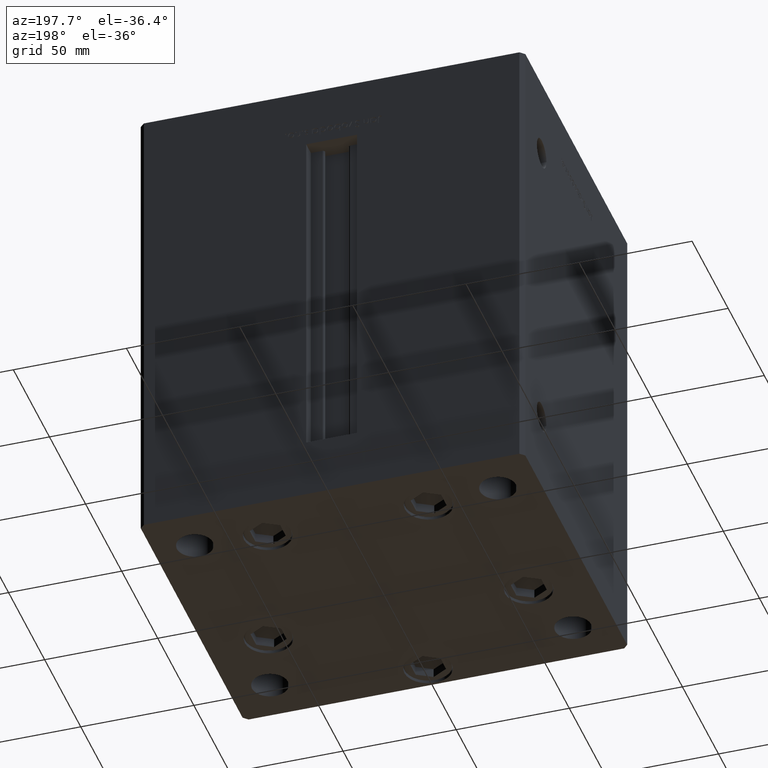
[diagram: clean part render]
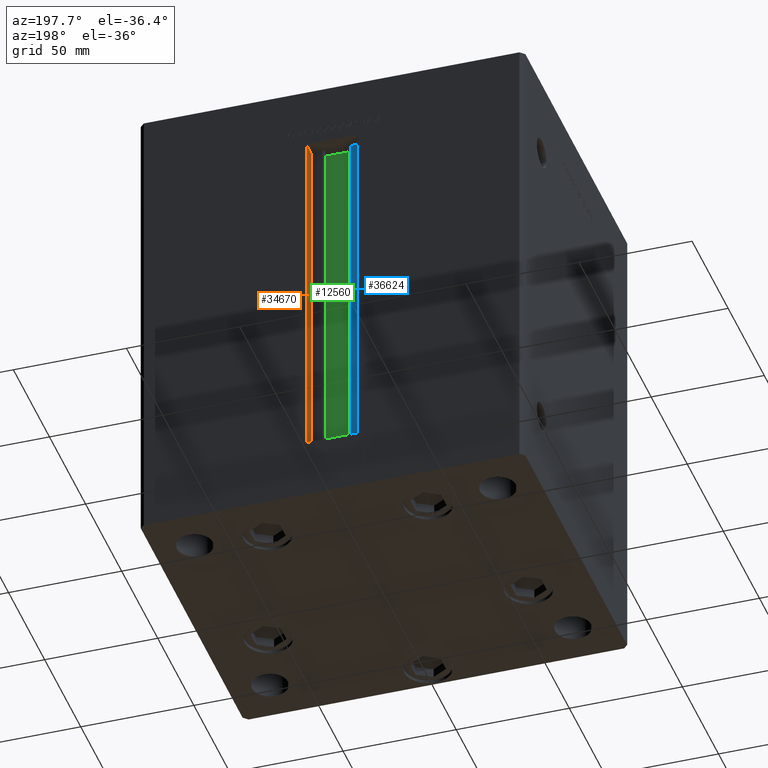
[diagram: same view with three faces highlighted in distinct colors, each labeled with its STEP entity id]
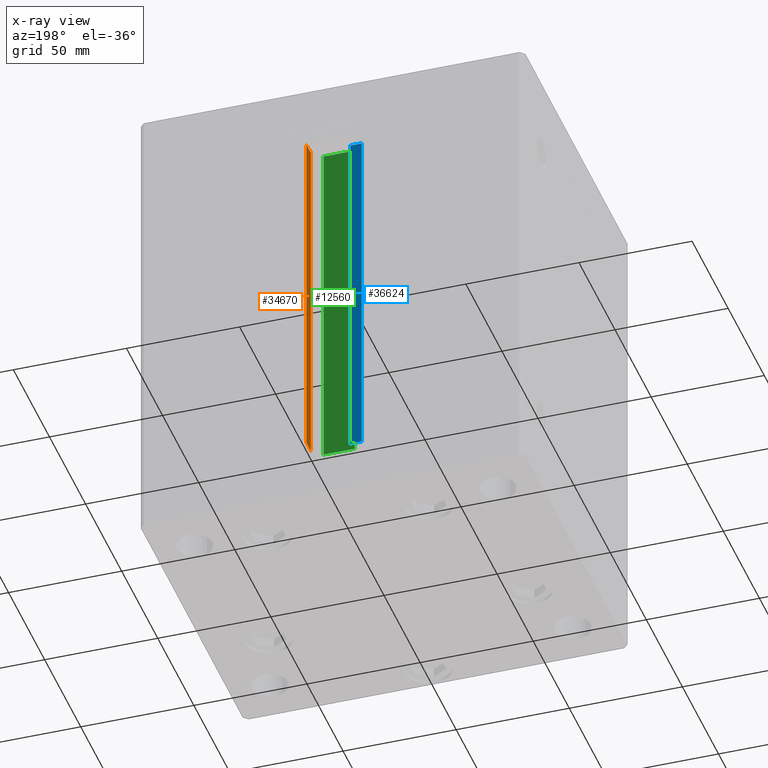
[diagram: x-ray of the same camera — body ghosted, the three highlighted faces saturated]
A machine part, auxiliary view with three faces highlighted in distinct colors.
The next image is the same camera in x-ray (body ghosted, the three faces saturated) — at least one of them is partly hidden behind the body in this view.
Their STEP definitions:

[orange] entity #34670 — the highlighted planar face has unit normal (1, 0, 0).
#409 = DIRECTION ( 'NONE',  ( 1.000000000000000000, -0.000000000000000000, 0.000000000000000000 ) ) ;
#3016 = LINE ( 'NONE', #7241, #25008 ) ;
#4824 = CARTESIAN_POINT ( 'NONE',  ( 11.25000000000000178, 65.99999999999997158, 156.0000000000000000 ) ) ;
#5044 = EDGE_CURVE ( 'NONE', #17215, #20206, #10112, .T. ) ;
#7241 = CARTESIAN_POINT ( 'NONE',  ( 11.25000000000000178, 65.99999999999997158, 0.000000000000000000 ) ) ;
#7609 = VECTOR ( 'NONE', #24935, 1000.000000000000000 ) ;
#7883 = VERTEX_POINT ( 'NONE', #48641 ) ;
#8319 = FACE_OUTER_BOUND ( 'NONE', #38593, .T. ) ;
#8476 = VECTOR ( 'NONE', #50532, 1000.000000000000000 ) ;
#8853 = CARTESIAN_POINT ( 'NONE',  ( 11.25000000000000178, 65.99999999999997158, 0.000000000000000000 ) ) ;
#10112 = LINE ( 'NONE', #42262, #23487 ) ;
#12174 = ORIENTED_EDGE ( 'NONE', *, *, #5044, .F. ) ;
#12532 = DIRECTION ( 'NONE',  ( 0.000000000000000000, 0.000000000000000000, -1.000000000000000000 ) ) ;
#13887 = LINE ( 'NONE', #17333, #8476 ) ;
#15965 = PLANE ( 'NONE',  #21809 ) ;
#17215 = VERTEX_POINT ( 'NONE', #39306 ) ;
#17333 = CARTESIAN_POINT ( 'NONE',  ( 11.25000000000000178, 72.49999999999998579, 0.000000000000000000 ) ) ;
#19084 = DIRECTION ( 'NONE',  ( -0.000000000000000000, -0.000000000000000000, 1.000000000000000000 ) ) ;
#20206 = VERTEX_POINT ( 'NONE', #4824 ) ;
#21809 = AXIS2_PLACEMENT_3D ( 'NONE', #24130, #409, #12532 ) ;
#22991 = DIRECTION ( 'NONE',  ( -0.000000000000000000, -1.000000000000000000, 0.000000000000000000 ) ) ;
#23487 = VECTOR ( 'NONE', #22991, 1000.000000000000000 ) ;
#24130 = CARTESIAN_POINT ( 'NONE',  ( 11.25000000000000178, 65.99999999999997158, 0.000000000000000000 ) ) ;
#24433 = EDGE_CURVE ( 'NONE', #7883, #20206, #3016, .T. ) ;
#24935 = DIRECTION ( 'NONE',  ( 0.000000000000000000, 1.000000000000000000, 0.000000000000000000 ) ) ;
#25008 = VECTOR ( 'NONE', #19084, 1000.000000000000000 ) ;
#28742 = VERTEX_POINT ( 'NONE', #41304 ) ;
#34670 = ADVANCED_FACE ( 'NONE', ( #8319 ), #15965, .F. ) ;
#37957 = EDGE_CURVE ( 'NONE', #7883, #28742, #41000, .T. ) ;
#38593 = EDGE_LOOP ( 'NONE', ( #40983, #43092, #52054, #12174 ) ) ;
#39306 = CARTESIAN_POINT ( 'NONE',  ( 11.24999999999999467, 72.49999999999998579, 156.0000000000000000 ) ) ;
#39545 = EDGE_CURVE ( 'NONE', #28742, #17215, #13887, .T. ) ;
#40983 = ORIENTED_EDGE ( 'NONE', *, *, #39545, .F. ) ;
#41000 = LINE ( 'NONE', #8853, #7609 ) ;
#41304 = CARTESIAN_POINT ( 'NONE',  ( 11.25000000000000178, 72.49999999999998579, 0.000000000000000000 ) ) ;
#42262 = CARTESIAN_POINT ( 'NONE',  ( 11.25000000000000178, 0.000000000000000000, 156.0000000000000000 ) ) ;
#43092 = ORIENTED_EDGE ( 'NONE', *, *, #37957, .F. ) ;
#48641 = CARTESIAN_POINT ( 'NONE',  ( 11.25000000000000178, 65.99999999999997158, 0.000000000000000000 ) ) ;
#50532 = DIRECTION ( 'NONE',  ( -0.000000000000000000, -0.000000000000000000, 1.000000000000000000 ) ) ;
#52054 = ORIENTED_EDGE ( 'NONE', *, *, #24433, .T. ) ;

[blue] entity #36624 — the highlighted planar face has unit normal (0, -1, 0).
#3811 = DIRECTION ( 'NONE',  ( 1.000000000000000000, 2.739037067332160936E-15, -0.000000000000000000 ) ) ;
#4966 = VERTEX_POINT ( 'NONE', #9082 ) ;
#5543 = DIRECTION ( 'NONE',  ( 2.739037067332161330E-15, -1.000000000000000000, 0.000000000000000000 ) ) ;
#7715 = ORIENTED_EDGE ( 'NONE', *, *, #11736, .T. ) ;
#7755 = LINE ( 'NONE', #32249, #41980 ) ;
#7767 = LINE ( 'NONE', #39912, #13942 ) ;
#9082 = CARTESIAN_POINT ( 'NONE',  ( -6.183333333334001480, 65.99999999999998579, 0.000000000000000000 ) ) ;
#10204 = LINE ( 'NONE', #45795, #31070 ) ;
#11736 = EDGE_CURVE ( 'NONE', #39741, #17714, #31391, .T. ) ;
#12395 = CARTESIAN_POINT ( 'NONE',  ( -6.183333333334001480, 65.99999999999998579, 0.000000000000000000 ) ) ;
#13889 = DIRECTION ( 'NONE',  ( -0.000000000000000000, -0.000000000000000000, 1.000000000000000000 ) ) ;
#13942 = VECTOR ( 'NONE', #3811, 1000.000000000000000 ) ;
#14951 = EDGE_CURVE ( 'NONE', #39741, #4966, #7767, .T. ) ;
#15978 = EDGE_LOOP ( 'NONE', ( #23958, #43099, #7715, #29642 ) ) ;
#17714 = VERTEX_POINT ( 'NONE', #29224 ) ;
#19606 = DIRECTION ( 'NONE',  ( -1.000000000000000000, -2.739037067332161330E-15, 0.000000000000000000 ) ) ;
#20172 = AXIS2_PLACEMENT_3D ( 'NONE', #12395, #5543, #25568 ) ;
#23958 = ORIENTED_EDGE ( 'NONE', *, *, #31220, .F. ) ;
#25568 = DIRECTION ( 'NONE',  ( 1.000000000000000000, 2.739037067332161330E-15, 0.000000000000000000 ) ) ;
#27039 = CARTESIAN_POINT ( 'NONE',  ( -6.183333333334002369, 65.99999999999998579, 156.0000000000000000 ) ) ;
#28843 = EDGE_CURVE ( 'NONE', #46241, #17714, #7755, .T. ) ;
#29002 = FACE_OUTER_BOUND ( 'NONE', #15978, .T. ) ;
#29224 = CARTESIAN_POINT ( 'NONE',  ( -11.25000000000000178, 65.99999999999997158, 156.0000000000000000 ) ) ;
#29642 = ORIENTED_EDGE ( 'NONE', *, *, #28843, .F. ) ;
#31070 = VECTOR ( 'NONE', #13889, 1000.000000000000000 ) ;
#31220 = EDGE_CURVE ( 'NONE', #4966, #46241, #10204, .T. ) ;
#31391 = LINE ( 'NONE', #35877, #38684 ) ;
#32249 = CARTESIAN_POINT ( 'NONE',  ( -1.807764464439226360E-13, 66.00000000000000000, 156.0000000000000000 ) ) ;
#35877 = CARTESIAN_POINT ( 'NONE',  ( -11.25000000000000178, 65.99999999999997158, 0.000000000000000000 ) ) ;
#36624 = ADVANCED_FACE ( 'NONE', ( #29002 ), #45610, .F. ) ;
#38684 = VECTOR ( 'NONE', #48026, 1000.000000000000000 ) ;
#39741 = VERTEX_POINT ( 'NONE', #40472 ) ;
#39912 = CARTESIAN_POINT ( 'NONE',  ( -6.183333333334001480, 65.99999999999998579, 0.000000000000000000 ) ) ;
#40472 = CARTESIAN_POINT ( 'NONE',  ( -11.25000000000000178, 65.99999999999997158, 0.000000000000000000 ) ) ;
#41980 = VECTOR ( 'NONE', #19606, 1000.000000000000000 ) ;
#43099 = ORIENTED_EDGE ( 'NONE', *, *, #14951, .F. ) ;
#45610 = PLANE ( 'NONE',  #20172 ) ;
#45795 = CARTESIAN_POINT ( 'NONE',  ( -6.183333333334001480, 65.99999999999998579, 0.000000000000000000 ) ) ;
#46241 = VERTEX_POINT ( 'NONE', #27039 ) ;
#48026 = DIRECTION ( 'NONE',  ( -0.000000000000000000, -0.000000000000000000, 1.000000000000000000 ) ) ;

[green] entity #12560 — the highlighted planar face has unit normal (0, -1, 0).
#551 = DIRECTION ( 'NONE',  ( -0.000000000000000000, -0.000000000000000000, 1.000000000000000000 ) ) ;
#1533 = VERTEX_POINT ( 'NONE', #32106 ) ;
#3627 = VERTEX_POINT ( 'NONE', #22356 ) ;
#4181 = LINE ( 'NONE', #27368, #29430 ) ;
#6984 = DIRECTION ( 'NONE',  ( 0.000000000000000000, -1.000000000000000000, -0.000000000000000000 ) ) ;
#7238 = CARTESIAN_POINT ( 'NONE',  ( 6.876153656360466826, 61.99999999999985079, 0.000000000000000000 ) ) ;
#7507 = DIRECTION ( 'NONE',  ( 0.000000000000000000, 0.000000000000000000, -1.000000000000000000 ) ) ;
#7771 = CARTESIAN_POINT ( 'NONE',  ( 0.000000000000000000, 61.99999999999985079, 156.0000000000000000 ) ) ;
#8230 = ORIENTED_EDGE ( 'NONE', *, *, #10140, .F. ) ;
#9180 = LINE ( 'NONE', #45798, #32238 ) ;
#10140 = EDGE_CURVE ( 'NONE', #38435, #1533, #36646, .T. ) ;
#11325 = EDGE_LOOP ( 'NONE', ( #8230, #21942, #12585, #45034 ) ) ;
#12560 = ADVANCED_FACE ( 'NONE', ( #14878 ), #43093, .F. ) ;
#12585 = ORIENTED_EDGE ( 'NONE', *, *, #46066, .T. ) ;
#14878 = FACE_OUTER_BOUND ( 'NONE', #11325, .T. ) ;
#16787 = AXIS2_PLACEMENT_3D ( 'NONE', #7238, #6984, #7507 ) ;
#17337 = DIRECTION ( 'NONE',  ( -0.000000000000000000, -0.000000000000000000, 1.000000000000000000 ) ) ;
#21942 = ORIENTED_EDGE ( 'NONE', *, *, #36238, .F. ) ;
#22356 = CARTESIAN_POINT ( 'NONE',  ( -6.876153656360466826, 61.99999999999985079, 156.0000000000000000 ) ) ;
#24436 = EDGE_CURVE ( 'NONE', #1533, #3627, #48106, .T. ) ;
#27368 = CARTESIAN_POINT ( 'NONE',  ( 6.876153656360466826, 61.99999999999985079, 0.000000000000000000 ) ) ;
#29430 = VECTOR ( 'NONE', #31582, 1000.000000000000000 ) ;
#31582 = DIRECTION ( 'NONE',  ( 1.000000000000000000, -0.000000000000000000, -0.000000000000000000 ) ) ;
#32106 = CARTESIAN_POINT ( 'NONE',  ( 6.876153656360466826, 61.99999999999985079, 156.0000000000000000 ) ) ;
#32238 = VECTOR ( 'NONE', #17337, 1000.000000000000000 ) ;
#36238 = EDGE_CURVE ( 'NONE', #37279, #38435, #4181, .T. ) ;
#36646 = LINE ( 'NONE', #49055, #39416 ) ;
#37279 = VERTEX_POINT ( 'NONE', #49703 ) ;
#38435 = VERTEX_POINT ( 'NONE', #46213 ) ;
#39416 = VECTOR ( 'NONE', #551, 1000.000000000000000 ) ;
#43093 = PLANE ( 'NONE',  #16787 ) ;
#45034 = ORIENTED_EDGE ( 'NONE', *, *, #24436, .F. ) ;
#45798 = CARTESIAN_POINT ( 'NONE',  ( -6.876153656360466826, 61.99999999999985079, 0.000000000000000000 ) ) ;
#46066 = EDGE_CURVE ( 'NONE', #37279, #3627, #9180, .T. ) ;
#46213 = CARTESIAN_POINT ( 'NONE',  ( 6.876153656360466826, 61.99999999999985079, 0.000000000000000000 ) ) ;
#47832 = DIRECTION ( 'NONE',  ( -1.000000000000000000, 0.000000000000000000, 0.000000000000000000 ) ) ;
#48106 = LINE ( 'NONE', #7771, #48602 ) ;
#48602 = VECTOR ( 'NONE', #47832, 1000.000000000000000 ) ;
#49055 = CARTESIAN_POINT ( 'NONE',  ( 6.876153656360466826, 61.99999999999985079, 0.000000000000000000 ) ) ;
#49703 = CARTESIAN_POINT ( 'NONE',  ( -6.876153656360466826, 61.99999999999985079, 0.000000000000000000 ) ) ;